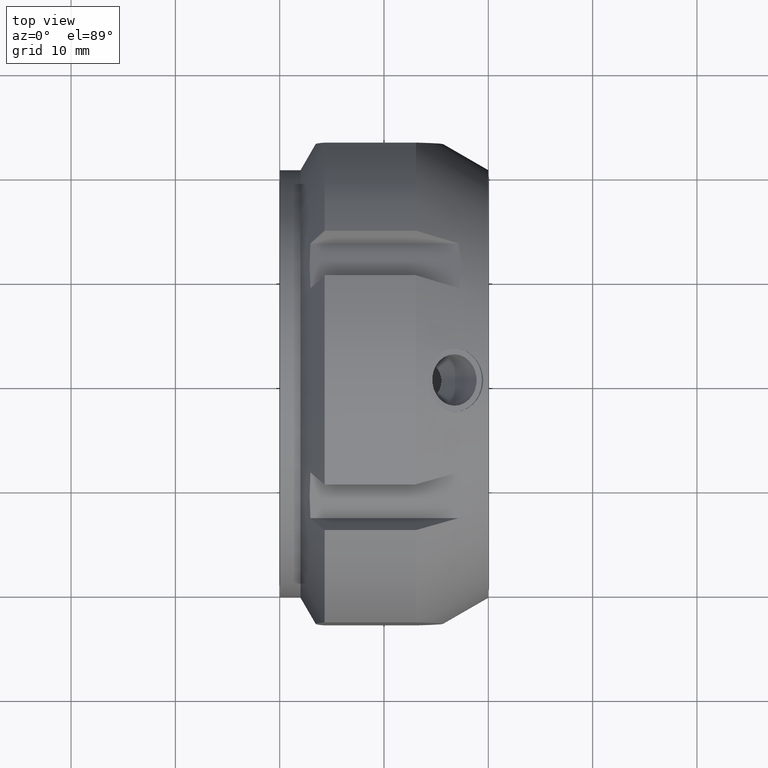
[diagram: clean part render]
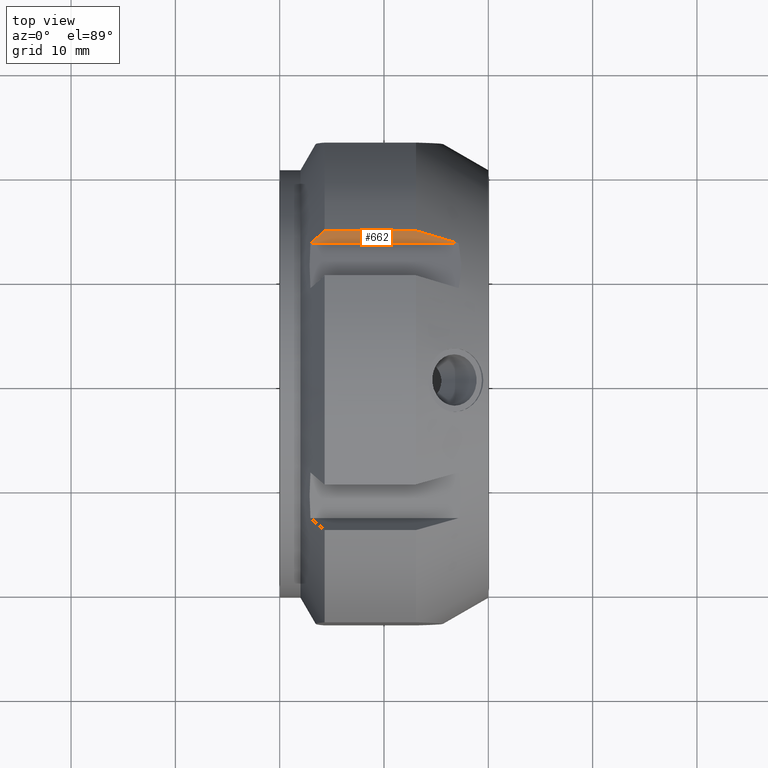
[diagram: same view with one face highlighted and labeled with its STEP entity id]
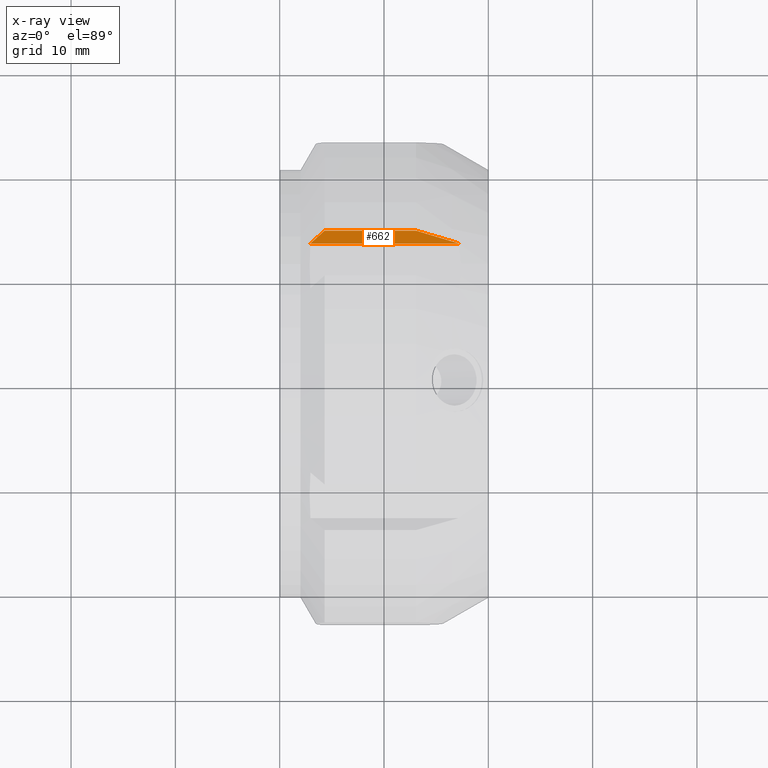
[diagram: x-ray of the same camera — body ghosted, the highlighted face saturated]
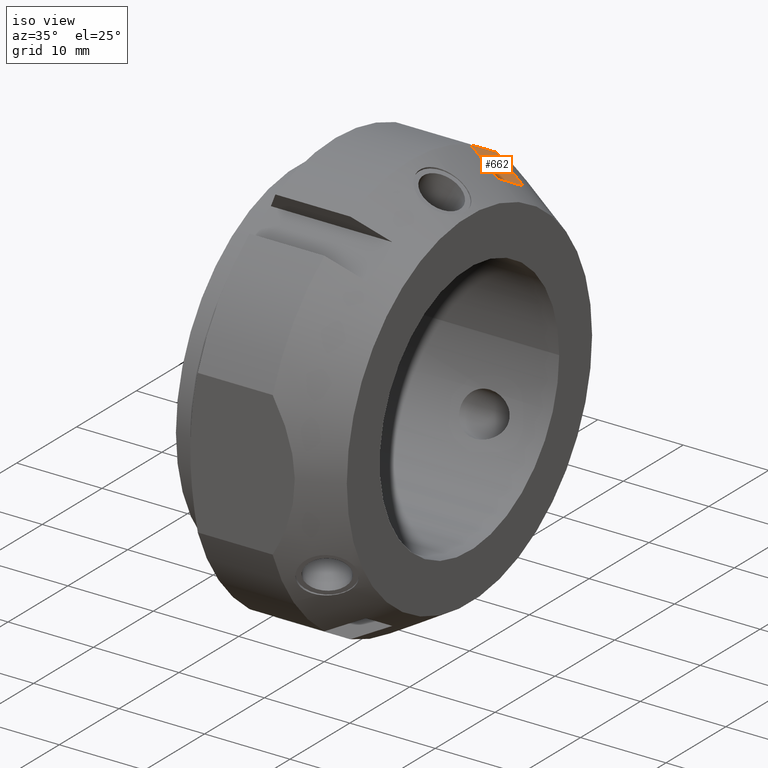
[diagram: same view with one face highlighted and labeled with its STEP entity id]
A machine part, top view. The second image highlights one B-rep face of the part: STEP entity #662.
The next image is the same camera in x-ray: the body ghosted, the highlighted face saturated — about 0% of this face is hidden behind the body in this view.
A second angle (iso view) of the same face is appended — the face is thin or edge-on in the first view.
In plain terms, the highlighted planar face has unit normal (0, 0.866, -0.5).
Its self-contained STEP definition (entity closure, byte-faithful):
#487=CARTESIAN_POINT('',(2.947772327642437,13.165063509461103,17.802558883257646));
#488=VERTEX_POINT('',#487);
#502=CARTESIAN_POINT('',(4.309401076758492,14.351121116415049,19.856870919205427));
#503=VERTEX_POINT('',#502);
#504=CARTESIAN_POINT('',(2.947772327642437,13.165063509461103,17.802558883257646));
#505=CARTESIAN_POINT('',(3.593760381891178,13.728106088819295,18.77777723753066));
#506=CARTESIAN_POINT('',(4.309401076758494,14.351121116415051,19.856870919205431));
#514=(BOUNDED_CURVE()B_SPLINE_CURVE(2,(#504,#505,#506),.UNSPECIFIED.,.F.,.U.)B_SPLINE_CURVE_WITH_KNOTS((3,3),(0.200658752236983,0.464057841166676),.UNSPECIFIED.)CURVE()GEOMETRIC_REPRESENTATION_ITEM()RATIONAL_B_SPLINE_CURVE((1.001975502370762,1.002284344328806,1.0))REPRESENTATION_ITEM(''));
#515=EDGE_CURVE('',#488,#503,#514,.T.);
#608=CARTESIAN_POINT('',(17.156683017072663,13.165063509461106,17.802558883257646));
#609=VERTEX_POINT('',#608);
#623=CARTESIAN_POINT('',(2.947772327642437,13.165063509461106,17.802558883257646));
#624=DIRECTION('',(1.0,0.0,0.0));
#625=VECTOR('',#624,14.208910689430226);
#626=LINE('',#623,#625);
#627=EDGE_CURVE('',#488,#609,#626,.T.);
#632=CARTESIAN_POINT('',(0.0,13.165063509461106,17.802558883257646));
#633=DIRECTION('',(0.0,0.866025403784438,-0.500000000000001));
#634=DIRECTION('',(0.0,0.500000000000001,0.866025403784438));
#635=AXIS2_PLACEMENT_3D('',#632,#633,#634);
#636=PLANE('',#635);
#637=ORIENTED_EDGE('',*,*,#515,.F.);
#638=ORIENTED_EDGE('',*,*,#627,.T.);
#639=CARTESIAN_POINT('',(13.071796769724482,14.351121116415047,19.856870919205424));
#640=VERTEX_POINT('',#639);
#641=CARTESIAN_POINT('',(13.071796769724479,14.351121116415047,19.856870919205424));
#642=CARTESIAN_POINT('',(15.218718854249943,13.728106088841535,18.777777237569186));
#643=CARTESIAN_POINT('',(17.156683017072663,13.165063509461106,17.802558883257646));
#651=(BOUNDED_CURVE()B_SPLINE_CURVE(2,(#641,#642,#643),.UNSPECIFIED.,.F.,.U.)B_SPLINE_CURVE_WITH_KNOTS((3,3),(0.0,0.454794500828807),.UNSPECIFIED.)CURVE()GEOMETRIC_REPRESENTATION_ITEM()RATIONAL_B_SPLINE_CURVE((1.0,1.002284344326081,1.001975502368327))REPRESENTATION_ITEM(''));
#652=EDGE_CURVE('',#640,#609,#651,.T.);
#653=ORIENTED_EDGE('',*,*,#652,.F.);
#654=CARTESIAN_POINT('',(4.309401076758492,14.351121116415049,19.856870919205427));
#655=DIRECTION('',(1.0,0.0,0.0));
#656=VECTOR('',#655,8.76239569296599);
#657=LINE('',#654,#656);
#658=EDGE_CURVE('',#503,#640,#657,.T.);
#659=ORIENTED_EDGE('',*,*,#658,.F.);
#660=EDGE_LOOP('',(#637,#638,#653,#659));
#661=FACE_OUTER_BOUND('',#660,.T.);
#662=ADVANCED_FACE('',(#661),#636,.F.);